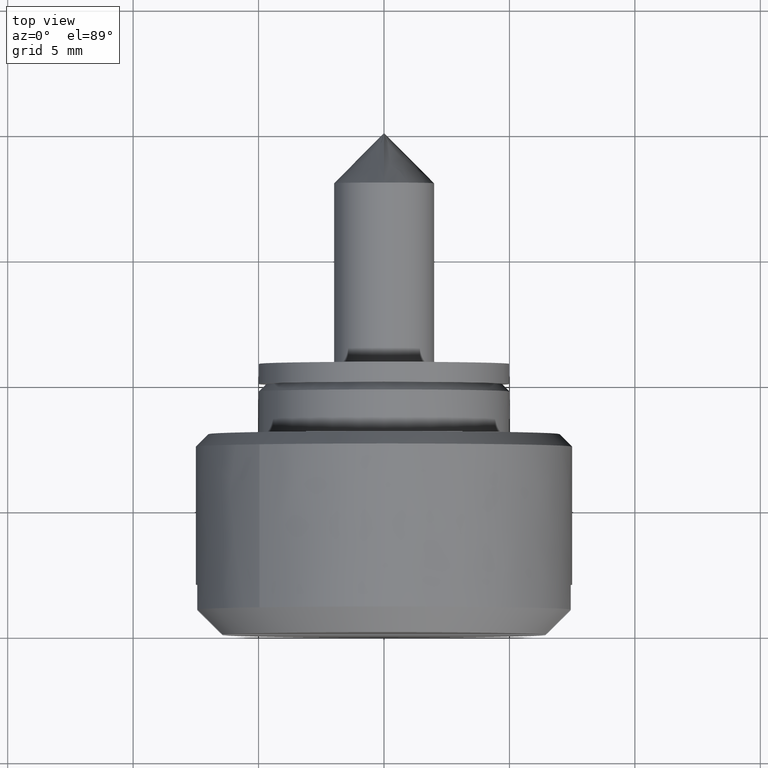
[diagram: clean part render]
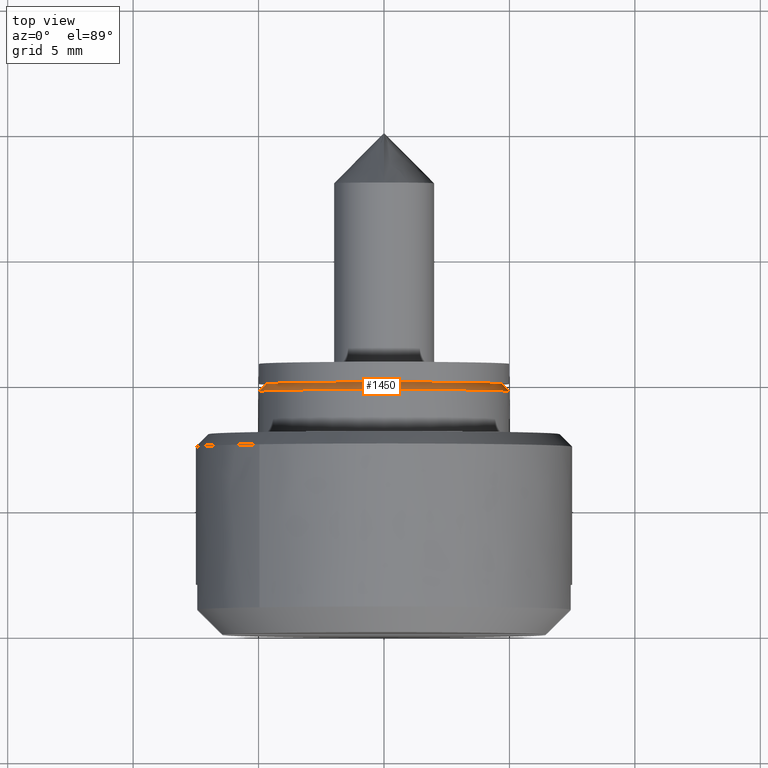
[diagram: same view with one face highlighted and labeled with its STEP entity id]
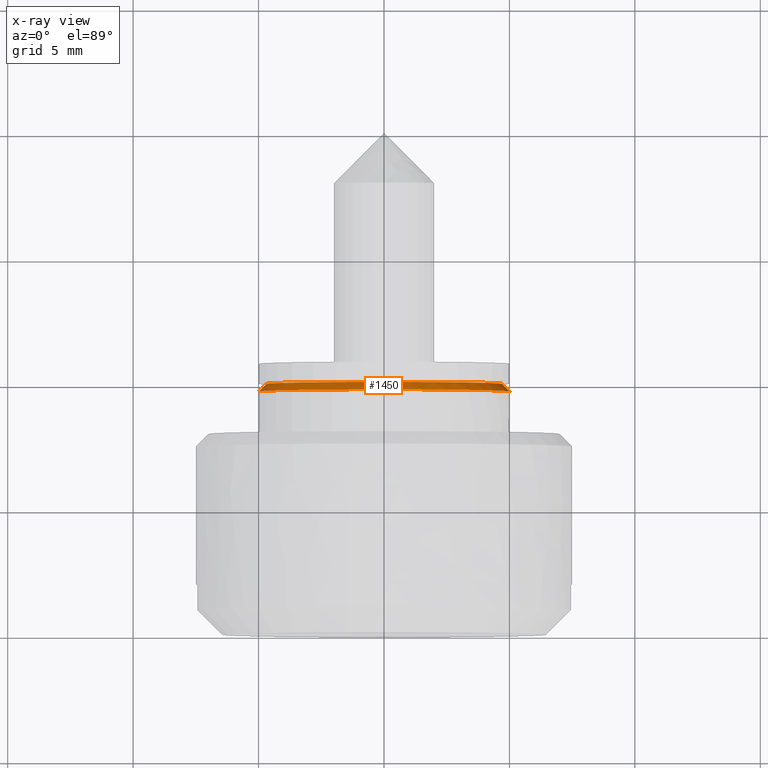
[diagram: x-ray of the same camera — body ghosted, the highlighted face saturated]
A machine part, top view. The second image highlights one B-rep face of the part: STEP entity #1450.
The next image is the same camera in x-ray: the body ghosted, the highlighted face saturated — about 0% of this face is hidden behind the body in this view.
In plain terms, the highlighted face is a freeform B-spline surface patch.
Its self-contained STEP definition (entity closure, byte-faithful):
#1253=CARTESIAN_POINT('',(-0.300000000001033,4.989130379298397,-0.329511848607132));
#1254=VERTEX_POINT('',#1253);
#1270=CARTESIAN_POINT('',(-2.097128E-012,4.689782556541044,-0.309741137698986));
#1271=VERTEX_POINT('',#1270);
#1272=CARTESIAN_POINT('',(-2.097128E-012,4.689782556541044,-0.309741137698986));
#1273=CARTESIAN_POINT('',(-0.300000000001033,4.989130379298397,-0.329511848607132));
#1274=QUASI_UNIFORM_CURVE('',1,(#1272,#1273),.UNSPECIFIED.,.F.,.U.);
#1275=EDGE_CURVE('',#1271,#1254,#1274,.T.);
#1292=CARTESIAN_POINT('',(-1.559568E-012,-4.699821038403064,0.041014716853850));
#1293=VERTEX_POINT('',#1292);
#1309=CARTESIAN_POINT('',(-0.300000000000547,-4.999809615321398,0.043632677496145));
#1310=VERTEX_POINT('',#1309);
#1311=CARTESIAN_POINT('',(-1.559568E-012,-4.699821038403064,0.041014716853850));
#1312=CARTESIAN_POINT('',(-0.300000000000547,-4.999809615321398,0.043632677496145));
#1313=QUASI_UNIFORM_CURVE('',1,(#1311,#1312),.UNSPECIFIED.,.F.,.U.);
#1314=EDGE_CURVE('',#1293,#1310,#1313,.T.);
#1349=CARTESIAN_POINT('',(0.007499999999999,-4.692321323978623,0.040949267826119));
#1350=CARTESIAN_POINT('',(0.007499999999999,-4.651372056152503,4.733270591804743));
#1351=CARTESIAN_POINT('',(0.007499999999999,0.040949267826119,4.692321323978623));
#1352=CARTESIAN_POINT('',(0.007499999999999,4.733270591804743,4.651372056152503));
#1353=CARTESIAN_POINT('',(0.007499999999999,4.692321323978623,-0.040949267826119));
#1354=CARTESIAN_POINT('',(0.007499999999999,4.691149373526435,-0.175241488160798));
#1355=CARTESIAN_POINT('',(0.007499999999999,4.682298860971049,-0.309246869910141));
#1356=CARTESIAN_POINT('',(-0.307687499999966,-5.007496822604411,0.043699762733513));
#1357=CARTESIAN_POINT('',(-0.307687499999966,-4.963797059870898,5.051196585337923));
#1358=CARTESIAN_POINT('',(-0.307687499999966,0.043699762733513,5.007496822604411));
#1359=CARTESIAN_POINT('',(-0.307687499999966,5.051196585337923,4.963797059870898));
#1360=CARTESIAN_POINT('',(-0.307687499999966,5.007496822604411,-0.043699762733513));
#1361=CARTESIAN_POINT('',(-0.307687499999966,5.006246154169666,-0.187012170430309));
#1362=CARTESIAN_POINT('',(-0.307687499999966,4.996801167256037,-0.330018473066199));
#1370=(BOUNDED_SURFACE()B_SPLINE_SURFACE(2,1,((#1349,#1356),(#1350,#1357),(#1351,#1358),(#1352,#1359),(#1353,#1360),(#1354,#1361),(#1355,#1362)),.UNSPECIFIED.,.F.,.F.,.U.)B_SPLINE_SURFACE_WITH_KNOTS((3,2,2,3),(2,2),(0.0,8.297008314504872,16.594016629009740,16.925896961589942),(0.0,0.445742437190445),.UNSPECIFIED.)GEOMETRIC_REPRESENTATION_ITEM()RATIONAL_B_SPLINE_SURFACE(((1.0,1.0),(0.707106781186548,0.707106781186548),(1.0,1.0),(0.707106781186548,0.707106781186548),(1.0,1.0),(0.988284271247462,0.988284271247462),(0.977505800795127,0.977505800795127)))REPRESENTATION_ITEM('')SURFACE());
#1371=CARTESIAN_POINT('',(-0.299999999999967,4.984587023627478,0.392290968369244));
#1372=VERTEX_POINT('',#1371);
#1373=CARTESIAN_POINT('',(-0.299999999999967,4.984587023627478,0.392290968369244));
#1374=CARTESIAN_POINT('',(-0.299999999999967,5.0,0.196448269438189));
#1375=CARTESIAN_POINT('',(-0.299999999999967,5.0,0.0));
#1376=CARTESIAN_POINT('',(-0.299999999999967,4.999999999999999,-0.164935202616878));
#1377=CARTESIAN_POINT('',(-0.300000000001033,4.989130379298397,-0.329511848607132));
#1385=(BOUNDED_CURVE()B_SPLINE_CURVE(2,(#1373,#1374,#1375,#1376,#1377),.UNSPECIFIED.,.F.,.U.)B_SPLINE_CURVE_WITH_KNOTS((3,2,3),(0.736331455745088,0.750000000000000,0.761505472927328),.UNSPECIFIED.)CURVE()GEOMETRIC_REPRESENTATION_ITEM()RATIONAL_B_SPLINE_CURVE((0.969723679879621,0.983986304306739,1.0,0.986520500001376,0.974281704181217))REPRESENTATION_ITEM(''));
#1386=EDGE_CURVE('',#1372,#1254,#1385,.T.);
#1387=ORIENTED_EDGE('',*,*,#1386,.F.);
#1388=CARTESIAN_POINT('',(-0.299999999999967,0.0,5.0));
#1389=VERTEX_POINT('',#1388);
#1390=CARTESIAN_POINT('',(-0.299999999999967,0.0,5.0));
#1391=CARTESIAN_POINT('',(-0.299999999999967,4.621956653367344,5.000000000000001));
#1392=CARTESIAN_POINT('',(-0.299999999999967,4.984587023627478,0.392290968369244));
#1400=(BOUNDED_CURVE()B_SPLINE_CURVE(2,(#1390,#1391,#1392),.UNSPECIFIED.,.F.,.U.)B_SPLINE_CURVE_WITH_KNOTS((3,3),(0.500000000000000,0.736331455745088),.UNSPECIFIED.)CURVE()GEOMETRIC_REPRESENTATION_ITEM()RATIONAL_B_SPLINE_CURVE((1.0,0.723120476879809,0.969723679879621))REPRESENTATION_ITEM(''));
#1401=EDGE_CURVE('',#1389,#1372,#1400,.T.);
#1402=ORIENTED_EDGE('',*,*,#1401,.F.);
#1403=CARTESIAN_POINT('',(-0.300000000000547,-4.999809615321398,0.043632677496145));
#1404=CARTESIAN_POINT('',(-0.299999999999967,-4.956556052966424,5.0));
#1405=CARTESIAN_POINT('',(-0.299999999999967,0.0,5.0));
#1413=(BOUNDED_CURVE()B_SPLINE_CURVE(2,(#1403,#1404,#1405),.UNSPECIFIED.,.F.,.U.)B_SPLINE_CURVE_WITH_KNOTS((3,3),(0.251539894335288,0.500000000000000),.UNSPECIFIED.)CURVE()GEOMETRIC_REPRESENTATION_ITEM()RATIONAL_B_SPLINE_CURVE((0.996414028099709,0.708910879620528,1.0))REPRESENTATION_ITEM(''));
#1414=EDGE_CURVE('',#1310,#1389,#1413,.T.);
#1415=ORIENTED_EDGE('',*,*,#1414,.F.);
#1416=ORIENTED_EDGE('',*,*,#1314,.F.);
#1417=CARTESIAN_POINT('',(0.0,0.0,4.700000000000000));
#1418=VERTEX_POINT('',#1417);
#1419=CARTESIAN_POINT('',(0.0,0.0,4.700000000000000));
#1420=CARTESIAN_POINT('',(0.0,-4.659162689773635,4.700000000000001));
#1421=CARTESIAN_POINT('',(-1.559568E-012,-4.699821038403064,0.041014716853850));
#1429=(BOUNDED_CURVE()B_SPLINE_CURVE(2,(#1419,#1420,#1421),.UNSPECIFIED.,.F.,.U.)B_SPLINE_CURVE_WITH_KNOTS((3,3),(0.0,0.248460105664152),.UNSPECIFIED.)CURVE()GEOMETRIC_REPRESENTATION_ITEM()RATIONAL_B_SPLINE_CURVE((1.0,0.708910879621183,0.996414028098414))REPRESENTATION_ITEM(''));
#1430=EDGE_CURVE('',#1418,#1293,#1429,.T.);
#1431=ORIENTED_EDGE('',*,*,#1430,.F.);
#1432=CARTESIAN_POINT('',(-2.097128E-012,4.689782556541045,-0.309741137698986));
#1433=CARTESIAN_POINT('',(0.0,4.699999999999999,-0.155039090468103));
#1434=CARTESIAN_POINT('',(0.0,4.700000000000000,0.0));
#1435=CARTESIAN_POINT('',(0.0,4.700000000000000,4.700000000000000));
#1436=CARTESIAN_POINT('',(0.0,0.0,4.700000000000000));
#1444=(BOUNDED_CURVE()B_SPLINE_CURVE(2,(#1432,#1433,#1434,#1435,#1436),.UNSPECIFIED.,.F.,.U.)B_SPLINE_CURVE_WITH_KNOTS((3,2,3),(0.738494527072069,0.750000000000000,1.0),.UNSPECIFIED.)CURVE()GEOMETRIC_REPRESENTATION_ITEM()RATIONAL_B_SPLINE_CURVE((0.974281704179934,0.986520500000669,1.0,0.707106781186547,1.0))REPRESENTATION_ITEM(''));
#1445=EDGE_CURVE('',#1271,#1418,#1444,.T.);
#1446=ORIENTED_EDGE('',*,*,#1445,.F.);
#1447=ORIENTED_EDGE('',*,*,#1275,.T.);
#1448=EDGE_LOOP('',(#1387,#1402,#1415,#1416,#1431,#1446,#1447));
#1449=FACE_OUTER_BOUND('',#1448,.T.);
#1450=ADVANCED_FACE('',(#1449),#1370,.T.);